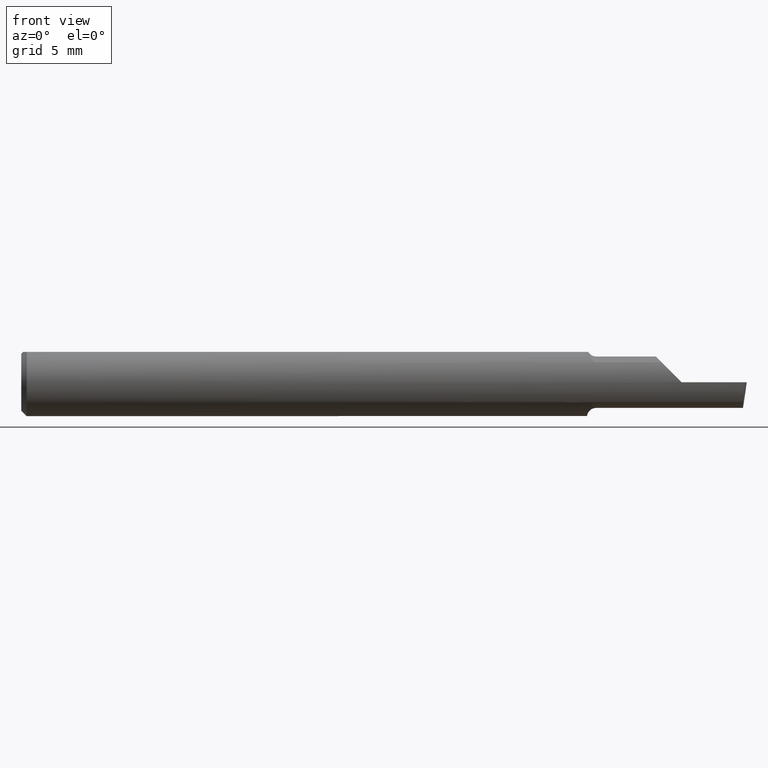
[diagram: clean part render]
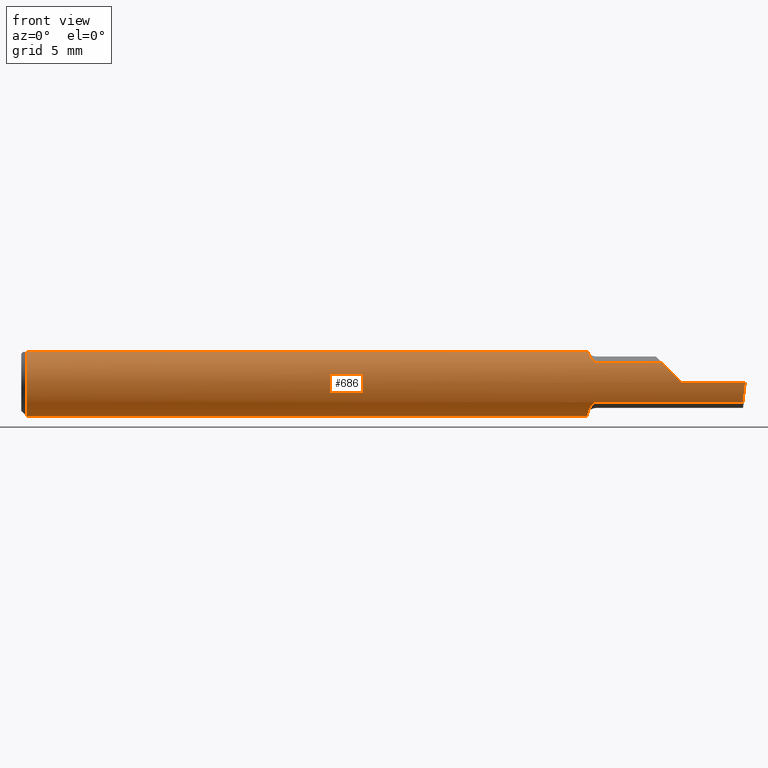
[diagram: same view with one face highlighted and labeled with its STEP entity id]
A machine part, front view. The second image highlights one B-rep face of the part: STEP entity #686.
In plain terms, the highlighted cylindrical surface (edge-blend (fillet) strip) has radius 2.3774 mm, axis along (-1, -0, -0).
Its self-contained STEP definition (entity closure, byte-faithful):
#3 = CARTESIAN_POINT ( 'NONE',  ( 40.06856062862259193, -1.867692931192261208, 1.471537348883145135 ) ) ;
#16 = AXIS2_PLACEMENT_3D ( 'NONE', #332, #23, #894 ) ;
#17 = CARTESIAN_POINT ( 'NONE',  ( 50.79999999999999716, -1.069216311136338415, 2.123439999999999994 ) ) ;
#23 = DIRECTION ( 'NONE',  ( -1.000000000000000000, -0.000000000000000000, -0.000000000000000000 ) ) ;
#25 = EDGE_CURVE ( 'NONE', #241, #879, #435, .T. ) ;
#26 = B_SPLINE_CURVE_WITH_KNOTS ( 'NONE', 3,
 ( #500, #875, #93, #3, #196, #867, #475, #788, #486, #791 ),
 .UNSPECIFIED., .F., .F.,
 ( 4, 2, 2, 2, 4 ),
 ( 0.000000000000000000, 0.0001677780048688617346, 0.0003355560097377234693, 0.0006711120194754354460, 0.001342224038950860267 ),
 .UNSPECIFIED. ) ;
#30 = DIRECTION ( 'NONE',  ( 1.000000000000000000, -0.000000000000000000, 0.000000000000000000 ) ) ;
#42 = CARTESIAN_POINT ( 'NONE',  ( 46.22800000000000153, -2.377391153344354358, 0.01523999999999297618 ) ) ;
#43 = CARTESIAN_POINT ( 'NONE',  ( 0.3809999999999993947, 0.000000000000000000, 0.000000000000000000 ) ) ;
#70 = AXIS2_PLACEMENT_3D ( 'NONE', #1172, #30, #505 ) ;
#71 = CARTESIAN_POINT ( 'NONE',  ( 39.62400000000000233, 0.000000000000000000, 0.000000000000000000 ) ) ;
#86 = ORIENTED_EDGE ( 'NONE', *, *, #1105, .T. ) ;
#92 = CARTESIAN_POINT ( 'NONE',  ( 0.3809999999999993947, 1.069216311136338193, 2.123439999999999994 ) ) ;
#93 = CARTESIAN_POINT ( 'NONE',  ( 40.15075819883399788, -1.914296983271151609, 1.410378004019683162 ) ) ;
#103 = CIRCLE ( 'NONE', #950, 2.377439999999999998 ) ;
#105 = CARTESIAN_POINT ( 'NONE',  ( 39.65359502680988157, -0.7772400000000002640, -2.246801935195890998 ) ) ;
#107 = CARTESIAN_POINT ( 'NONE',  ( 39.99833921319878272, -1.803620501935299103, -1.550125347827789879 ) ) ;
#111 = CARTESIAN_POINT ( 'NONE',  ( 40.25899999999999324, -1.932524967320262244, -1.384762869333165058 ) ) ;
#112 = VERTEX_POINT ( 'NONE', #105 ) ;
#114 =( BOUNDED_CURVE ( )  B_SPLINE_CURVE ( 3, ( #441, #352, #1208, #729 ),
 .UNSPECIFIED., .F., .T. ) 
 B_SPLINE_CURVE_WITH_KNOTS ( ( 4, 4 ),
 ( 0.7373942140986471383, 1.359145557743775212 ),
 .UNSPECIFIED. ) 
 CURVE ( )  GEOMETRIC_REPRESENTATION_ITEM ( )  RATIONAL_B_SPLINE_CURVE ( ( 1.000000000000000000, 0.9680440490283191979, 0.9680440490283191979, 1.000000000000000000 ) ) 
 REPRESENTATION_ITEM ( '' )  );
#121 = EDGE_CURVE ( 'NONE', #157, #224, #26, .T. ) ;
#125 = ORIENTED_EDGE ( 'NONE', *, *, #1114, .T. ) ;
#129 = DIRECTION ( 'NONE',  ( 1.000000000000000000, 0.000000000000000000, 0.000000000000000000 ) ) ;
#142 = ORIENTED_EDGE ( 'NONE', *, *, #630, .F. ) ;
#153 = CARTESIAN_POINT ( 'NONE',  ( 39.65359502680988157, -0.7772400000000002640, -2.246801935195890998 ) ) ;
#157 = VERTEX_POINT ( 'NONE', #1141 ) ;
#169 = ORIENTED_EDGE ( 'NONE', *, *, #642, .F. ) ;
#170 = EDGE_CURVE ( 'NONE', #262, #631, #289, .T. ) ;
#181 = CARTESIAN_POINT ( 'NONE',  ( 39.68206824592344617, -1.037316482243745064, -2.156833237068743969 ) ) ;
#196 = CARTESIAN_POINT ( 'NONE',  ( 40.03536447019918398, -1.839262941281539554, 1.507180161431582510 ) ) ;
#199 = B_SPLINE_CURVE_WITH_KNOTS ( 'NONE', 3,
 ( #439, #824, #1014, #153 ),
 .UNSPECIFIED., .F., .F.,
 ( 4, 4 ),
 ( 0.000000000000000000, 0.0005909717450447476072 ),
 .UNSPECIFIED. ) ;
#207 = DIRECTION ( 'NONE',  ( -1.000000000000000000, -0.000000000000000000, -0.000000000000000000 ) ) ;
#209 = CARTESIAN_POINT ( 'NONE',  ( 40.03524380985003006, -1.841756582495869710, -1.504269776298312600 ) ) ;
#222 = CARTESIAN_POINT ( 'NONE',  ( 43.24350000000000449, -1.932524967320262244, -1.384762869333165058 ) ) ;
#224 = VERTEX_POINT ( 'NONE', #604 ) ;
#241 = VERTEX_POINT ( 'NONE', #797 ) ;
#256 = B_SPLINE_CURVE_WITH_KNOTS ( 'NONE', 3,
 ( #394, #181, #774, #309, #1149, #107, #209, #876, #1066, #976, #764, #111 ),
 .UNSPECIFIED., .F., .F.,
 ( 4, 2, 2, 2, 2, 4 ),
 ( 0.0005909717450447476072, 0.001414678542264609460, 0.001826531940874540332, 0.002032458640179510539, 0.002135421989831995642, 0.002238385339484481179 ),
 .UNSPECIFIED. ) ;
#262 = VERTEX_POINT ( 'NONE', #42 ) ;
#289 =( BOUNDED_CURVE ( )  B_SPLINE_CURVE ( 3, ( #975, #591, #693, #882 ),
 .UNSPECIFIED., .F., .F. ) 
 B_SPLINE_CURVE_WITH_KNOTS ( ( 4, 4 ),
 ( 4.718799280696809539, 5.334140324029819524 ),
 .UNSPECIFIED. ) 
 CURVE ( )  GEOMETRIC_REPRESENTATION_ITEM ( )  RATIONAL_B_SPLINE_CURVE ( ( 1.000000000000000000, 0.9686944085491864254, 0.9686944085491864254, 1.000000000000000000 ) ) 
 REPRESENTATION_ITEM ( '' )  );
#294 = CARTESIAN_POINT ( 'NONE',  ( 39.62400000000000233, 1.069216311136338193, 2.123439999999999994 ) ) ;
#309 = CARTESIAN_POINT ( 'NONE',  ( 39.85216824647991274, -1.585967451514965099, -1.776094618710649442 ) ) ;
#327 = DIRECTION ( 'NONE',  ( 1.000000000000000000, 0.000000000000000000, 0.000000000000000000 ) ) ;
#332 = CARTESIAN_POINT ( 'NONE',  ( 50.79999999999999716, 0.000000000000000000, 0.000000000000000000 ) ) ;
#340 = ORIENTED_EDGE ( 'NONE', *, *, #519, .T. ) ;
#352 = CARTESIAN_POINT ( 'NONE',  ( 50.59152446203115261, -2.224239315545497586, -0.9776568775742312534 ) ) ;
#354 = VECTOR ( 'NONE', #207, 1000.000000000000000 ) ;
#359 = DIRECTION ( 'NONE',  ( 0.000000000000000000, 0.000000000000000000, -1.000000000000000000 ) ) ;
#382 = DIRECTION ( 'NONE',  ( 1.000000000000000000, -0.000000000000000000, -0.000000000000000000 ) ) ;
#394 = CARTESIAN_POINT ( 'NONE',  ( 39.65359502680988157, -0.7772400000000002640, -2.246801935195890998 ) ) ;
#415 = LINE ( 'NONE', #803, #587 ) ;
#421 = DIRECTION ( 'NONE',  ( -1.000000000000000000, -0.000000000000000000, -0.000000000000000000 ) ) ;
#433 = DIRECTION ( 'NONE',  ( 0.000000000000000000, 0.000000000000000000, -1.000000000000000000 ) ) ;
#435 = CIRCLE ( 'NONE', #738, 2.377439999999999998 ) ;
#439 = CARTESIAN_POINT ( 'NONE',  ( 39.62400000000000233, -0.1997635294117658944, -2.369032605498910371 ) ) ;
#441 = CARTESIAN_POINT ( 'NONE',  ( 50.54923430675796681, -1.932524967320262022, -1.384762869333165280 ) ) ;
#456 = EDGE_LOOP ( 'NONE', ( #169, #1111, #86, #142, #710, #854, #753, #719, #747, #973, #616, #703, #340, #125 ) ) ;
#467 = CARTESIAN_POINT ( 'NONE',  ( 40.25899999999999324, -1.932524967320262244, -1.384762869333165058 ) ) ;
#470 = VERTEX_POINT ( 'NONE', #535 ) ;
#475 = CARTESIAN_POINT ( 'NONE',  ( 39.90210128635853692, -1.676377683405150698, 1.689032053085177454 ) ) ;
#486 = CARTESIAN_POINT ( 'NONE',  ( 39.73412360235253971, -1.266098155268266856, 2.024304032366151418 ) ) ;
#500 = CARTESIAN_POINT ( 'NONE',  ( 40.25899999999999324, -1.932524967320262244, 1.384762869333165058 ) ) ;
#505 = DIRECTION ( 'NONE',  ( 0.000000000000000000, 0.000000000000000000, -1.000000000000000000 ) ) ;
#510 = CYLINDRICAL_SURFACE ( 'NONE', #16, 2.377439999999999998 ) ;
#515 = VECTOR ( 'NONE', #820, 1000.000000000000000 ) ;
#519 = EDGE_CURVE ( 'NONE', #470, #112, #199, .T. ) ;
#525 = VERTEX_POINT ( 'NONE', #467 ) ;
#535 = CARTESIAN_POINT ( 'NONE',  ( 39.62400000000000233, -0.1997635294117658944, -2.369032605498910371 ) ) ;
#557 = CARTESIAN_POINT ( 'NONE',  ( 50.54923430675796681, -1.932524967320262022, -1.384762869333165280 ) ) ;
#568 = CARTESIAN_POINT ( 'NONE',  ( 50.79999999999999716, -2.377439999999999998, -6.505213034913026604E-16 ) ) ;
#569 = CARTESIAN_POINT ( 'NONE',  ( 0.3809999999999993947, 0.000000000000000000, 0.000000000000000000 ) ) ;
#586 = EDGE_CURVE ( 'NONE', #224, #732, #906, .T. ) ;
#587 = VECTOR ( 'NONE', #327, 1000.000000000000000 ) ;
#591 = CARTESIAN_POINT ( 'NONE',  ( 45.73250996477317187, -2.374214869910208581, 0.5107300352268197008 ) ) ;
#592 = EDGE_CURVE ( 'NONE', #157, #631, #1077, .T. ) ;
#600 = VERTEX_POINT ( 'NONE', #717 ) ;
#604 = CARTESIAN_POINT ( 'NONE',  ( 39.69667307896505548, -1.069216311136338415, 2.123439999999999994 ) ) ;
#616 = ORIENTED_EDGE ( 'NONE', *, *, #694, .T. ) ;
#617 = CIRCLE ( 'NONE', #70, 2.377439999999999998 ) ;
#630 = EDGE_CURVE ( 'NONE', #262, #1117, #617, .T. ) ;
#631 = VERTEX_POINT ( 'NONE', #1087 ) ;
#642 = EDGE_CURVE ( 'NONE', #804, #525, #807, .T. ) ;
#650 = CARTESIAN_POINT ( 'NONE',  ( 0.3809999999992708108, -1.069216311139973508, 2.123439999999999994 ) ) ;
#669 = EDGE_CURVE ( 'NONE', #732, #241, #103, .T. ) ;
#678 = VECTOR ( 'NONE', #129, 1000.000000000000000 ) ;
#686 = ADVANCED_FACE ( 'NONE', ( #702 ), #510, .T. ) ;
#693 = CARTESIAN_POINT ( 'NONE',  ( 45.26124924613768741, -2.221133849346881295, 0.9819907538622970611 ) ) ;
#694 = EDGE_CURVE ( 'NONE', #879, #1098, #415, .T. ) ;
#702 = FACE_OUTER_BOUND ( 'NONE', #456, .T. ) ;
#703 = ORIENTED_EDGE ( 'NONE', *, *, #849, .F. ) ;
#710 = ORIENTED_EDGE ( 'NONE', *, *, #170, .T. ) ;
#717 = CARTESIAN_POINT ( 'NONE',  ( 50.70752380417522431, -2.377440000000000442, -3.252606517456513302E-16 ) ) ;
#719 = ORIENTED_EDGE ( 'NONE', *, *, #586, .T. ) ;
#729 = CARTESIAN_POINT ( 'NONE',  ( 50.70752380417522431, -2.377440000000000442, -3.252606517456513302E-16 ) ) ;
#732 = VERTEX_POINT ( 'NONE', #650 ) ;
#738 = AXIS2_PLACEMENT_3D ( 'NONE', #569, #382, #838 ) ;
#747 = ORIENTED_EDGE ( 'NONE', *, *, #669, .T. ) ;
#753 = ORIENTED_EDGE ( 'NONE', *, *, #121, .T. ) ;
#764 = CARTESIAN_POINT ( 'NONE',  ( 40.22373730727166929, -1.932524967320289777, -1.384762869333151736 ) ) ;
#774 = CARTESIAN_POINT ( 'NONE',  ( 39.72981098855984783, -1.274942537004540188, -2.024124026350070160 ) ) ;
#783 = EDGE_CURVE ( 'NONE', #804, #600, #114, .T. ) ;
#785 = VECTOR ( 'NONE', #421, 1000.000000000000000 ) ;
#788 = CARTESIAN_POINT ( 'NONE',  ( 39.78590465488720440, -1.445156649963298179, 1.899248549121114404 ) ) ;
#791 = CARTESIAN_POINT ( 'NONE',  ( 39.69667307896505548, -1.069216311136338415, 2.123439999999999994 ) ) ;
#797 = CARTESIAN_POINT ( 'NONE',  ( 0.3809999999999993947, 0.000000000000000000, -2.377439999999999998 ) ) ;
#803 = CARTESIAN_POINT ( 'NONE',  ( 50.79999999999999716, 1.069216311136338193, 2.123439999999999994 ) ) ;
#804 = VERTEX_POINT ( 'NONE', #557 ) ;
#807 = LINE ( 'NONE', #222, #785 ) ;
#820 = DIRECTION ( 'NONE',  ( -1.000000000000000000, -0.000000000000000000, -0.000000000000000000 ) ) ;
#824 = CARTESIAN_POINT ( 'NONE',  ( 39.62400000000000233, -0.3981623393507752184, -2.352303056731824160 ) ) ;
#838 = DIRECTION ( 'NONE',  ( 0.000000000000000000, 0.000000000000000000, -1.000000000000000000 ) ) ;
#844 = DIRECTION ( 'NONE',  ( 1.000000000000000000, 0.000000000000000000, 0.000000000000000000 ) ) ;
#849 = EDGE_CURVE ( 'NONE', #470, #1098, #1122, .T. ) ;
#854 = ORIENTED_EDGE ( 'NONE', *, *, #592, .F. ) ;
#867 = CARTESIAN_POINT ( 'NONE',  ( 39.94627194371095413, -1.746696332958890041, 1.615645346097393187 ) ) ;
#875 = CARTESIAN_POINT ( 'NONE',  ( 40.20190815464641787, -1.932524967320262466, 1.384762869333165058 ) ) ;
#876 = CARTESIAN_POINT ( 'NONE',  ( 40.10508291531577640, -1.889504432616559759, -1.443143247077445457 ) ) ;
#879 = VERTEX_POINT ( 'NONE', #92 ) ;
#882 = CARTESIAN_POINT ( 'NONE',  ( 44.85847713066682019, -1.932524967320258247, 1.384762869333169277 ) ) ;
#894 = DIRECTION ( 'NONE',  ( 0.000000000000000000, 0.000000000000000000, 1.000000000000000000 ) ) ;
#906 = LINE ( 'NONE', #17, #515 ) ;
#950 = AXIS2_PLACEMENT_3D ( 'NONE', #43, #1176, #433 ) ;
#967 = CARTESIAN_POINT ( 'NONE',  ( 46.22800000000000153, -2.377439999999999998, -6.505213034913026604E-16 ) ) ;
#973 = ORIENTED_EDGE ( 'NONE', *, *, #25, .T. ) ;
#975 = CARTESIAN_POINT ( 'NONE',  ( 46.22800000000000153, -2.377391153344354358, 0.01523999999999297618 ) ) ;
#976 = CARTESIAN_POINT ( 'NONE',  ( 40.18958784584748400, -1.925335719837831139, -1.394860538933794913 ) ) ;
#1014 = CARTESIAN_POINT ( 'NONE',  ( 39.63316680156829364, -0.5906470848080461744, -2.311350338476107602 ) ) ;
#1064 = LINE ( 'NONE', #568, #354 ) ;
#1066 = CARTESIAN_POINT ( 'NONE',  ( 40.13070174924274625, -1.903710356681039162, -1.424233279706485167 ) ) ;
#1077 = LINE ( 'NONE', #1165, #678 ) ;
#1087 = CARTESIAN_POINT ( 'NONE',  ( 44.85847713066682019, -1.932524967320258247, 1.384762869333169277 ) ) ;
#1098 = VERTEX_POINT ( 'NONE', #294 ) ;
#1105 = EDGE_CURVE ( 'NONE', #600, #1117, #1064, .T. ) ;
#1111 = ORIENTED_EDGE ( 'NONE', *, *, #783, .T. ) ;
#1114 = EDGE_CURVE ( 'NONE', #112, #525, #256, .T. ) ;
#1117 = VERTEX_POINT ( 'NONE', #967 ) ;
#1122 = CIRCLE ( 'NONE', #1219, 2.377439999999999998 ) ;
#1141 = CARTESIAN_POINT ( 'NONE',  ( 40.25899999999999324, -1.932524967320262244, 1.384762869333165058 ) ) ;
#1149 = CARTESIAN_POINT ( 'NONE',  ( 39.90065381243101683, -1.680929914004957837, -1.685690896730938082 ) ) ;
#1165 = CARTESIAN_POINT ( 'NONE',  ( 43.24350000000000449, -1.932524967320262244, 1.384762869333165058 ) ) ;
#1172 = CARTESIAN_POINT ( 'NONE',  ( 46.22800000000000153, 0.000000000000000000, 0.000000000000000000 ) ) ;
#1176 = DIRECTION ( 'NONE',  ( 1.000000000000000000, -0.000000000000000000, -0.000000000000000000 ) ) ;
#1208 = CARTESIAN_POINT ( 'NONE',  ( 50.64602938446594749, -2.377439999999999110, -0.5008318574996006856 ) ) ;
#1219 = AXIS2_PLACEMENT_3D ( 'NONE', #71, #844, #359 ) ;